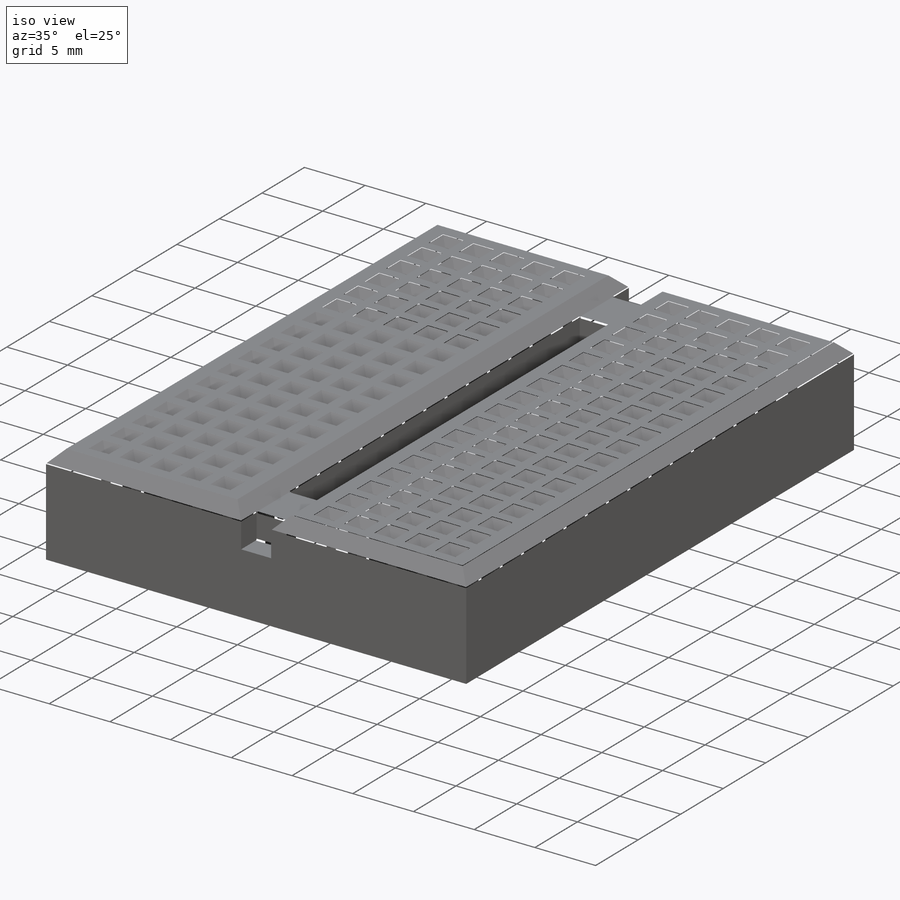
[diagram: iso view]
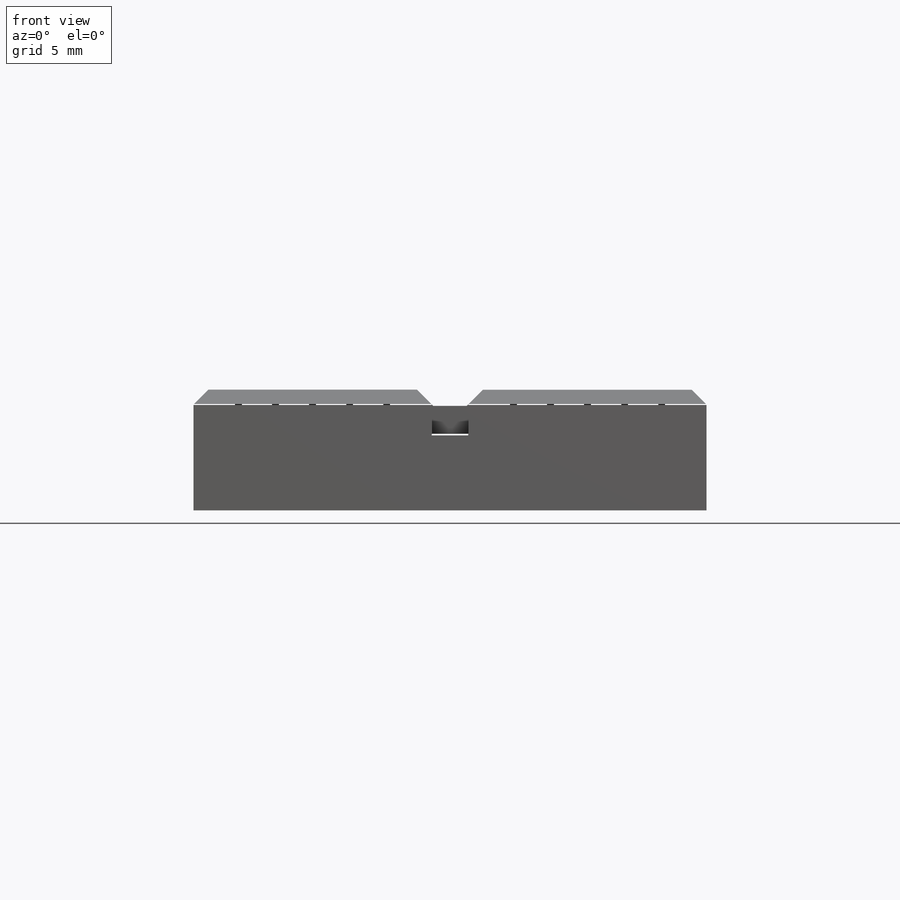
[diagram: front view]
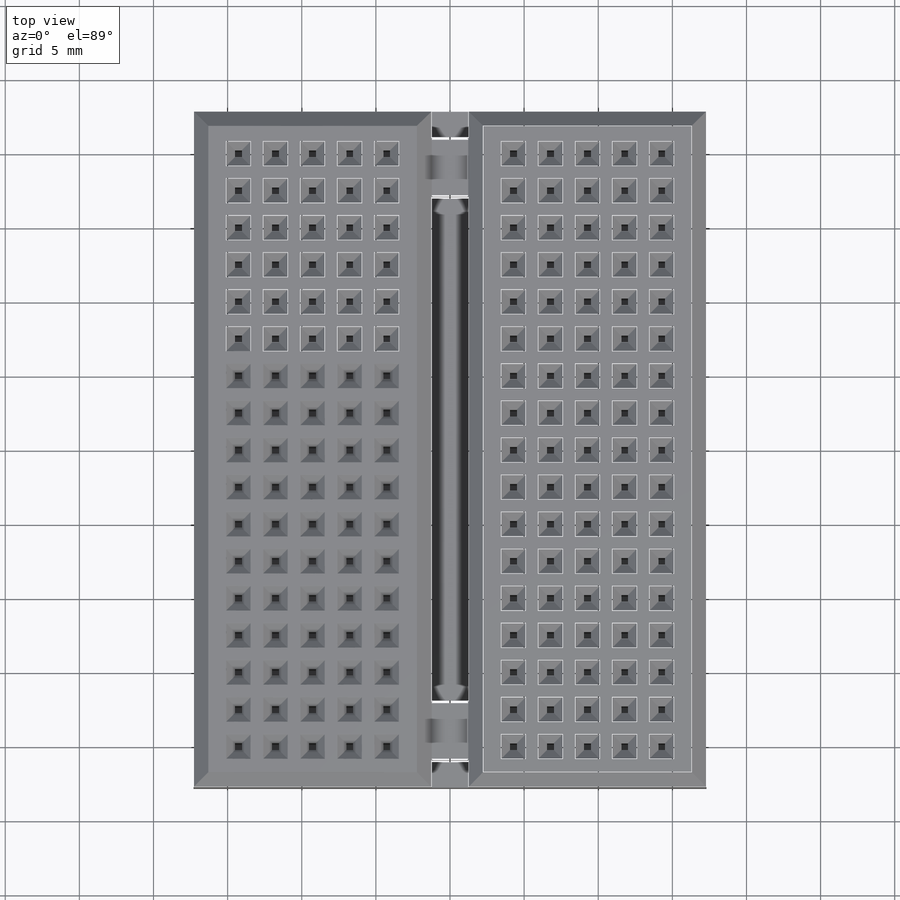
[diagram: top view]
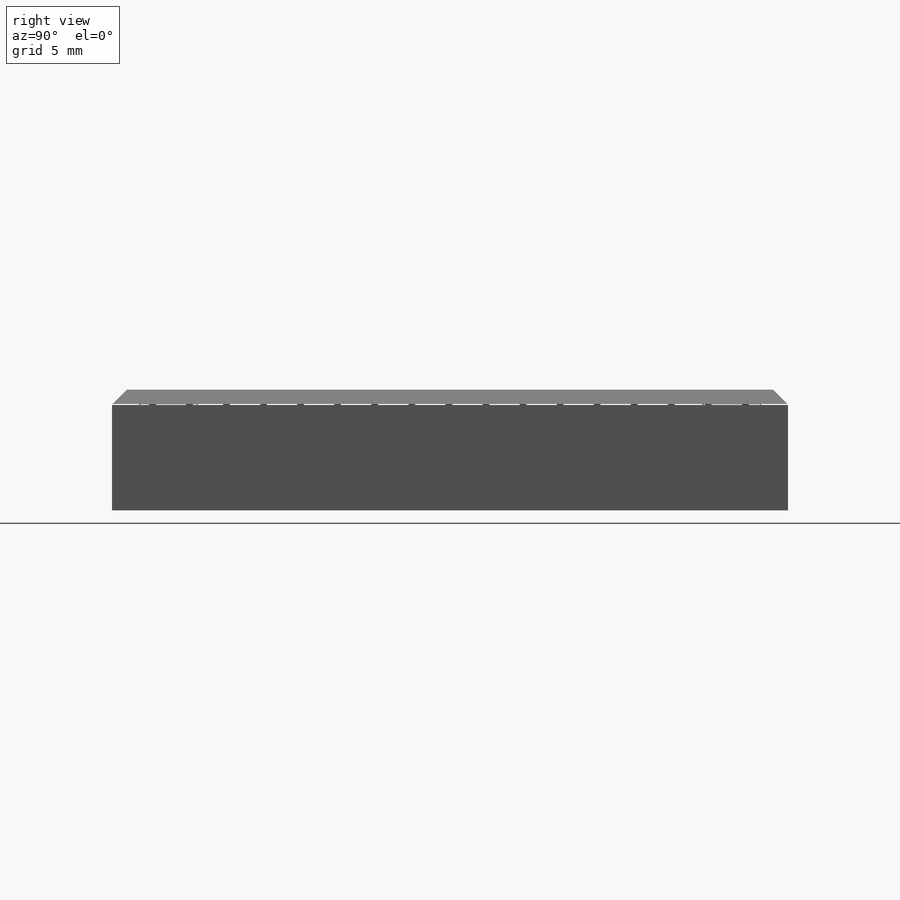
[diagram: right view]
SOLIDWORKS PART (.sldprt)
format: sldprt  version: not decoded by parser v0  size: 2,697,216 bytes
history: native  units: mm
features: sketch x4, fillet x3, extrude x2, cut_extrude x2, chamfer x2, material x1, pattern_linear x1 (+11 scaffold rows collapsed)
feature tree (26):
  scaffold x11  (default folders/planes/origin — collapsed)
  material  "ABS"
  sketch  "Sketch1"  dims[D1=34.6mm D2=45.6mm]
  extrude  "Boss-Extrude1"  Depth=8.15mm
  sketch  "Sketch2"  dims[D1=2.47mm]
  cut_extrude  "Cut-Extrude1"  Depth=3.09mm
  chamfer  "Chamfer1"  Distance=1mm Angle=45deg
  sketch  "Sketch3"  dims[D1=3.95mm D2=3.95mm D3=1.82mm D4=1.82mm]
  extrude  "Boss-Extrude2"  [1 undecoded]
  sketch  "Sketch4"  dims[D1=0.45mm D2=0.45mm D3=2.5mm D4=2.8mm D7=2.5mm D6=17.0]
  cut_extrude  "Cut-Extrude2"  Depth=7.09mm
  chamfer  "Chamfer2"  Distance=0.6mm Angle=45deg
  pattern_linear  "LPattern9"  Count1=17 Count2=5 Spacing1=2.5mm Spacing2=2.5mm
  fillet  "Fillet2"  Radius=0.05mm
  fillet  "Fillet3"  Radius=0.1mm
  fillet  "Fillet4"  Radius=0.1mm
decode coverage: 13 of 14 modeling features carry decoded parameters
note: 1 parameter value undecoded
note: suppression state not decoded; provenance and decode notes live in map.json
